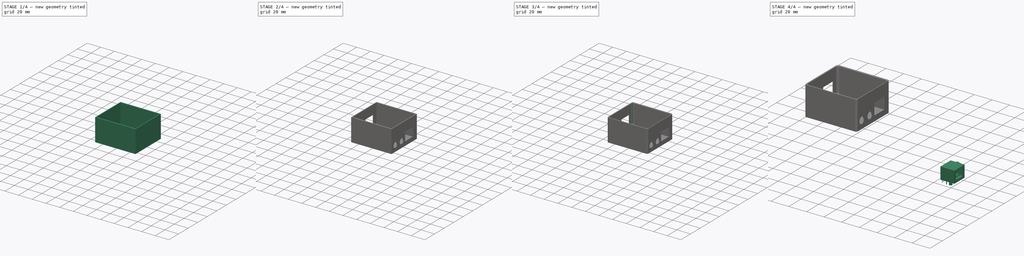
[diagram: build sequence overview — one tinted view per stage of 4, left to right]
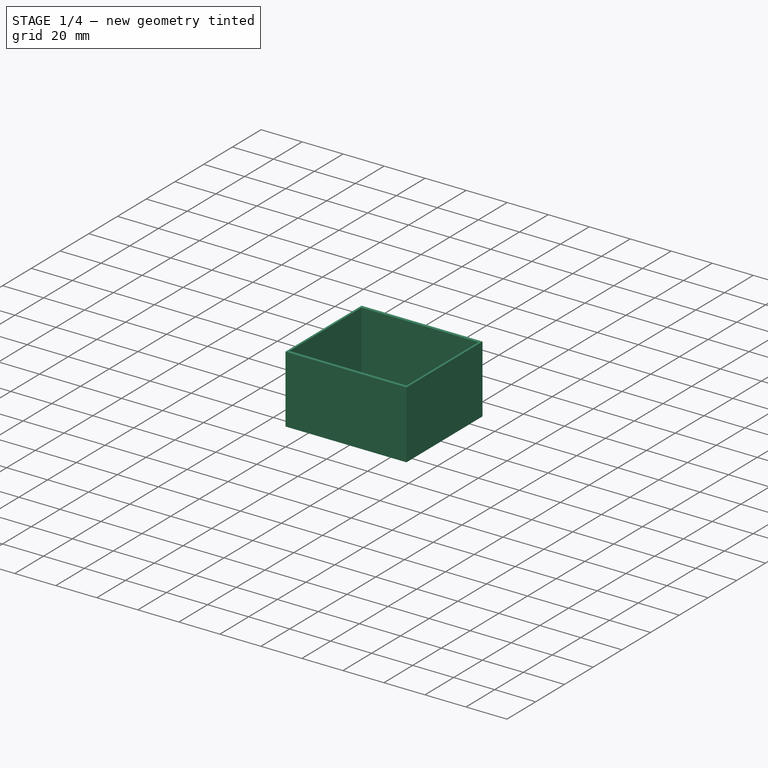
[diagram: stage 1 of 4 — iso view after this stage's code; geometry added in this stage tinted green]
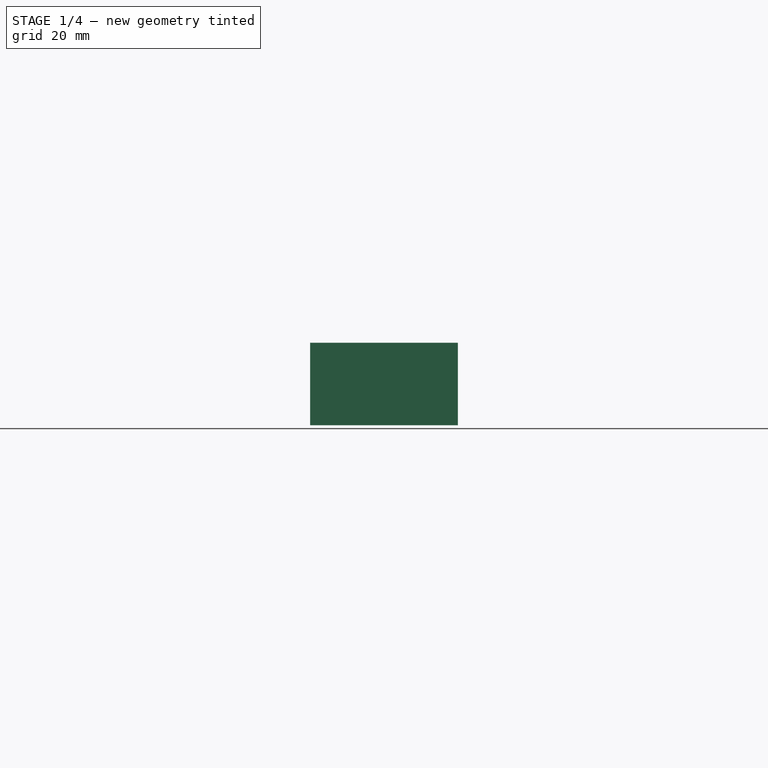
[diagram: stage 1 of 4 — front view after this stage's code; geometry added in this stage tinted green]
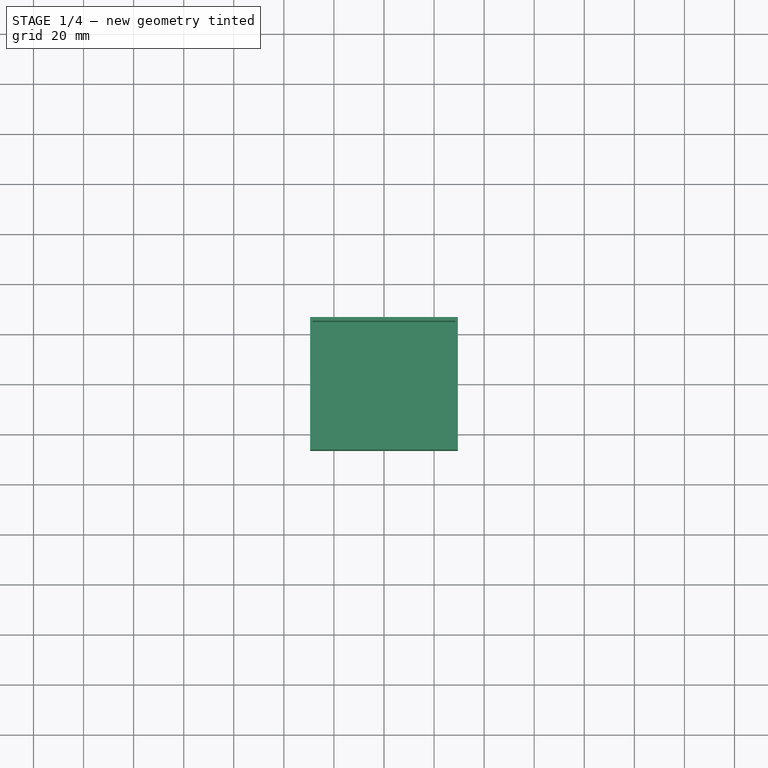
[diagram: stage 1 of 4 — top view after this stage's code; geometry added in this stage tinted green]
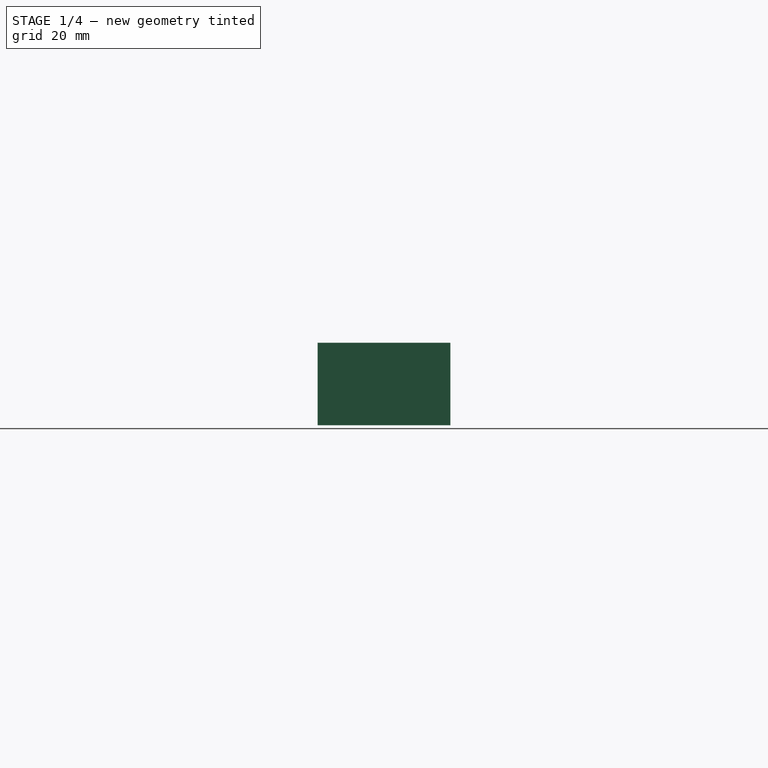
[diagram: stage 1 of 4 — right view after this stage's code; geometry added in this stage tinted green]
FCSTD DOCUMENT  (FreeCAD 0.19RUnknown)
Label: cASE
License: All rights reserved
LicenseURL: http://en.wikipedia.org/wiki/All_rights_reserved
objects: Part::Feature×11, Sketcher::SketchObject×5, PartDesign::Pocket×3, PartDesign::Fillet×3, Part::Compound2×2, PartDesign::Pad×2, App::Link×1, App::LinkGroup×1, PartDesign::Body×1
note: 33 computed .brp shape members not serialized (recipe doc carries the construction recipe); baked Part::Feature solids carry a one-line shape summary decoded from their .brp

FEATURE [Part::Feature] Solid010  label="Mikadapter PCB"
  shape: bbox 57.15 x 50.8 x 1.6 mm, 76 faces (baked)
FEATURE [App::Link] Link  label="FC68132"
  ElementCount = 3
  LinkedObject = -> Compound001
  PlacementList = 3 placements: [(166.45,-77.771,2.15),(166.37,-90.805,2.65),(119.38,-90.805,1.65)]
  ScaleList = (3) [(1,1,1),(1,1,1),(1,1,1)]
  ShowElement = false
FEATURE [App::LinkGroup] LinkGroup  label="Mikadapter 1"
  ElementList = -> [Compound,Link,Solid010]
  LinkMode = 0
  Placement = pos=(-142.75,72.5001,4) rot=(0,0,1;0rad)
FEATURE [Sketcher::SketchObject] Sketch
  FullyConstrained = true
  MapMode = 5
  Support = -> [XY_Plane]
  sketch-geometry (4):
    g0: LineSegment StartX=-29.5 StartY=26.5 StartZ=0 EndX=29.5 EndY=26.5 EndZ=0
    g1: LineSegment StartX=29.5 StartY=26.5 StartZ=0 EndX=29.5 EndY=-26.5 EndZ=0
    g2: LineSegment StartX=29.5 StartY=-26.5 StartZ=0 EndX=-29.5 EndY=-26.5 EndZ=0
    g3: LineSegment StartX=-29.5 StartY=-26.5 StartZ=0 EndX=-29.5 EndY=26.5 EndZ=0
  constraints (11):
    c: Coincident(g0,g1)
    c: Coincident(g1,g2)
    c: Coincident(g2,g3)
    c: Coincident(g3,g0)
    c: Horizontal(g0)
    c: Horizontal(g2)
    c: Vertical(g1)
    c: Vertical(g3)
    c: Symmetric(g0,g1,g-1)
    c: Distance(g0) = 59
    c: Distance(g1) = 53
FEATURE [PartDesign::Pad] Pad
  Direction = (1,1,1)
  Length = 33
  Length2 = 100
  Profile = -> Sketch
  Type = 0
FEATURE [Sketcher::SketchObject] Sketch001
  FullyConstrained = true
  MapMode = 5
  Placement = pos=(0,0,33) rot=(0,0,1;0rad)
  Support = -> [Pad]
  sketch-geometry (4):
    g0: LineSegment StartX=-28.5 StartY=25 StartZ=0 EndX=28.5 EndY=25 EndZ=0
    g1: LineSegment StartX=28.5 StartY=25 StartZ=0 EndX=28.5 EndY=-25 EndZ=0
    g2: LineSegment StartX=28.5 StartY=-25 StartZ=0 EndX=-28.5 EndY=-25 EndZ=0
    g3: LineSegment StartX=-28.5 StartY=-25 StartZ=0 EndX=-28.5 EndY=25 EndZ=0
  constraints (11):
    c: Horizontal(g0)
    c: Vertical(g1)
    c: Coincident(g1,g2)
    c: Horizontal(g2)
    c: Coincident(g2,g3)
    c: Coincident(g3,g0)
    c: Vertical(g3)
    c: Coincident(g1,g0)
    c: Distance(g2) = 57
    c: Distance(g1) = 50
    c: Symmetric(g0,g2,g-1)
FEATURE [PartDesign::Pocket] Pocket
  BaseFeature = -> Pad
  Length = 31
  Length2 = 100
  Profile = -> Sketch001
  Type = 0
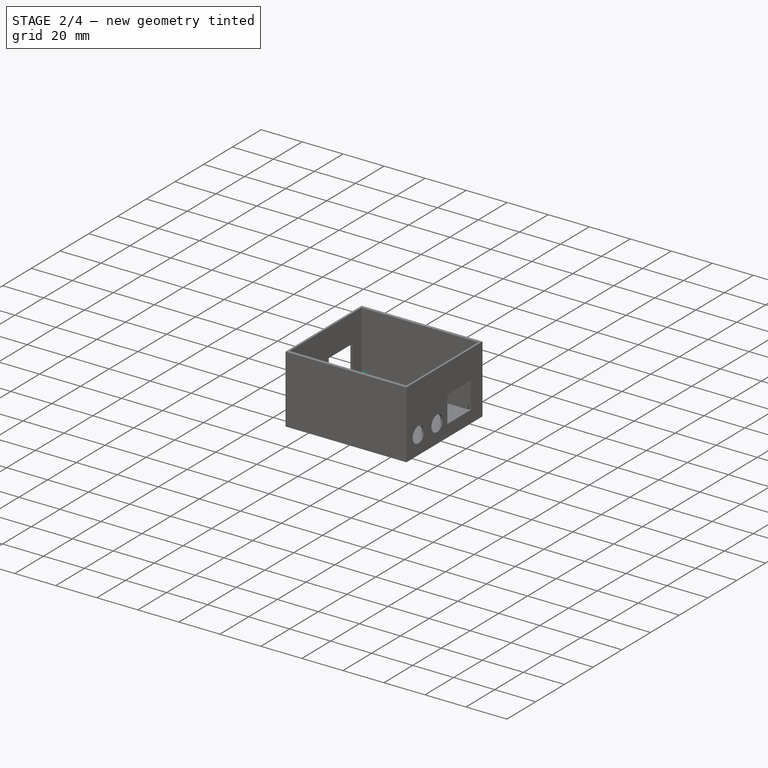
[diagram: stage 2 of 4 — iso view after this stage's code; geometry added in this stage tinted green]
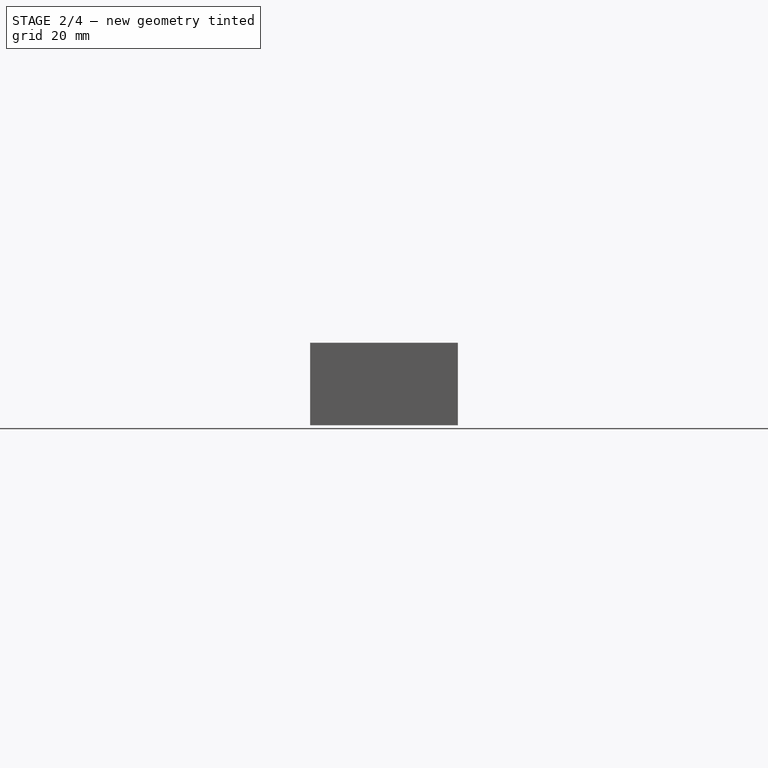
[diagram: stage 2 of 4 — front view after this stage's code; geometry added in this stage tinted green]
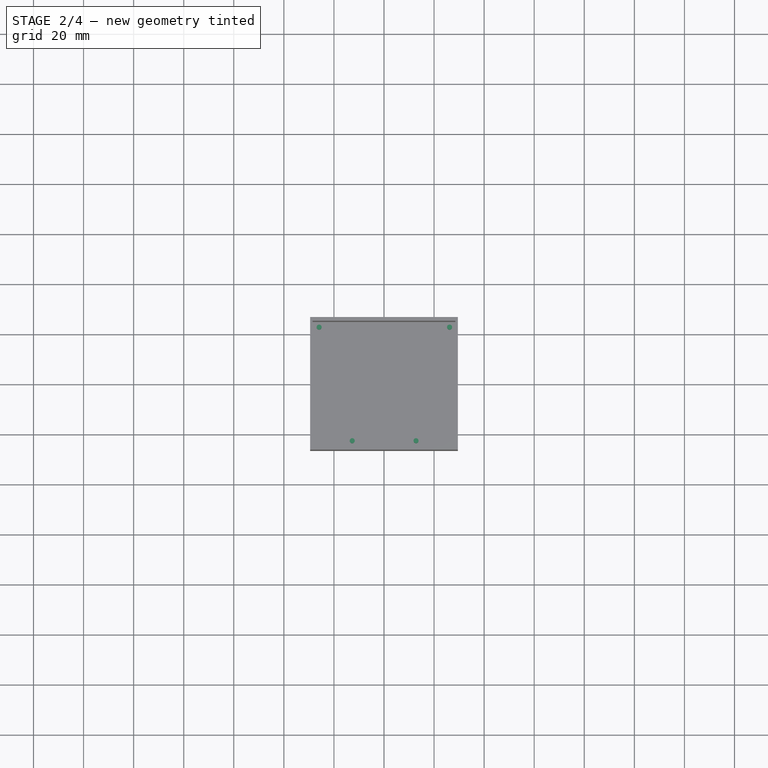
[diagram: stage 2 of 4 — top view after this stage's code; geometry added in this stage tinted green]
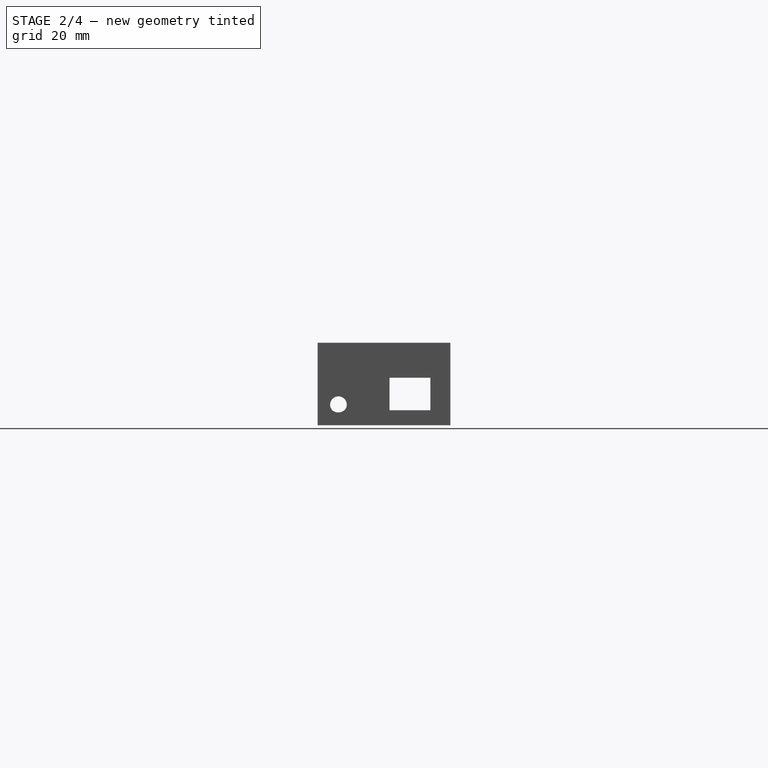
[diagram: stage 2 of 4 — right view after this stage's code; geometry added in this stage tinted green]
FEATURE [Sketcher::SketchObject] Sketch002
  ExternalGeometry = -> [Pocket]
  FullyConstrained = true
  MapMode = 5
  Placement = pos=(29.5,0,0) rot=(0.57735,0.57735,0.57735;2.0944rad)
  Support = -> [Pocket]
  sketch-geometry (6):
    g0: LineSegment StartX=2 StartY=19 StartZ=0 EndX=18.5 EndY=19 EndZ=0
    g1: LineSegment StartX=18.5 StartY=19 StartZ=0 EndX=18.5 EndY=6 EndZ=0
    g2: LineSegment StartX=18.5 StartY=6 StartZ=0 EndX=2 EndY=6 EndZ=0
    g3: LineSegment StartX=2 StartY=6 StartZ=0 EndX=2 EndY=19 EndZ=0
    g4: Circle CenterX=-18.25 CenterY=9 CenterZ=0 NormalX=0 NormalY=0 NormalZ=1 AngleXU=0 Radius=3.855
    g5: Circle CenterX=-5.25 CenterY=9 CenterZ=0 NormalX=0 NormalY=0 NormalZ=1 AngleXU=0 Radius=3.855
  constraints (18):
    c: Coincident(g0,g1)
    c: Coincident(g1,g2)
    c: Coincident(g2,g3)
    c: Coincident(g3,g0)
    c: Horizontal(g0)
    c: Horizontal(g2)
    c: Vertical(g1)
    c: Vertical(g3)
    c: DistanceY(g-1,g2) = 6
    c: Distance(g3) = 13
    c: Distance(g2) = 16.5
    c: DistanceY(g-3,g4) = 9
    c: DistanceY(g4,g5) = 0
    c: DistanceX(g-3,g4) = 8.25
    c: DistanceX(g4,g5) = 13
    c: Equal(g4,g5)
    c: DistanceX(g-4,g0) = 28.5
    c: Diameter(g5) = 7.71
FEATURE [PartDesign::Pocket] Pocket001
  BaseFeature = -> Pocket
  Length = 2
  Length2 = 100
  Profile = -> Sketch002
  Type = 0
FEATURE [Sketcher::SketchObject] Sketch003
  FullyConstrained = true
  MapMode = 5
  Placement = pos=(-31,0,0) rot=(0.57735,-0.57735,-0.57735;2.0944rad)
  sketch-geometry (5):
    g0: LineSegment StartX=-18.7 StartY=19.44 StartZ=0 EndX=-2.2 EndY=19.44 EndZ=0
    g1: LineSegment StartX=-2.2 StartY=19.44 StartZ=0 EndX=-2.2 EndY=5.5 EndZ=0
    g2: LineSegment StartX=-2.2 StartY=5.5 StartZ=0 EndX=-18.7 EndY=5.5 EndZ=0
    g3: LineSegment StartX=-18.7 StartY=5.5 StartZ=0 EndX=-18.7 EndY=19.44 EndZ=0
    g4: Circle CenterX=18.2 CenterY=8.25 CenterZ=0 NormalX=0 NormalY=0 NormalZ=1 AngleXU=0 Radius=3.315
  constraints (15):
    c: Coincident(g0,g1)
    c: Coincident(g1,g2)
    c: Coincident(g2,g3)
    c: Coincident(g3,g0)
    c: Horizontal(g0)
    c: Horizontal(g2)
    c: Vertical(g1)
    c: Vertical(g3)
    c: DistanceY(g-1,g2) = 5.5
    c: DistanceX(g2,g2) = 16.5
    c: Diameter(g4) = 6.63
    c: DistanceY(g-1,g4) = 8.25
    c: DistanceX(g-1,g4) = 18.2
    c: DistanceX(g1,g-1) = 2.2
    c: Distance(g3) = 13.94
FEATURE [PartDesign::Pocket] Pocket002
  BaseFeature = -> Pocket001
  Length = 3
  Length2 = 100
  Profile = -> Sketch003
  Type = 0
FEATURE [Sketcher::SketchObject] Sketch004
  FullyConstrained = false
  MapMode = 5
  Placement = pos=(0,0,2) rot=(0,0,1;0rad)
  sketch-geometry (4):
    g0: Circle CenterX=-25.9091 CenterY=22.9263 CenterZ=0 NormalX=0 NormalY=0 NormalZ=1 AngleXU=0 Radius=1
    g1: Circle CenterX=26.1909 CenterY=22.9263 CenterZ=0 NormalX=0 NormalY=0 NormalZ=1 AngleXU=0 Radius=1
    g2: Circle CenterX=12.801 CenterY=-22.4616 CenterZ=0 NormalX=0 NormalY=0 NormalZ=1 AngleXU=0 Radius=1
    g3: Circle CenterX=-12.689 CenterY=-22.4616 CenterZ=0 NormalX=0 NormalY=0 NormalZ=1 AngleXU=0 Radius=1
  constraints (8):
    c: Diameter(g0) = 2
    c: Equal(g0,g1)
    c: Equal(g1,g3)
    c: Equal(g3,g2)
    c: DistanceY(g2,g3) = 0
    c: DistanceY(g1,g0) = 0
    c: DistanceX(g0,g1) = 52.1
    c: DistanceX(g3,g2) = 25.49
FEATURE [PartDesign::Pad] Pad001
  BaseFeature = -> Pocket002
  Direction = (1,1,1)
  Length = 4
  Length2 = 100
  Profile = -> Sketch004
  Type = 0
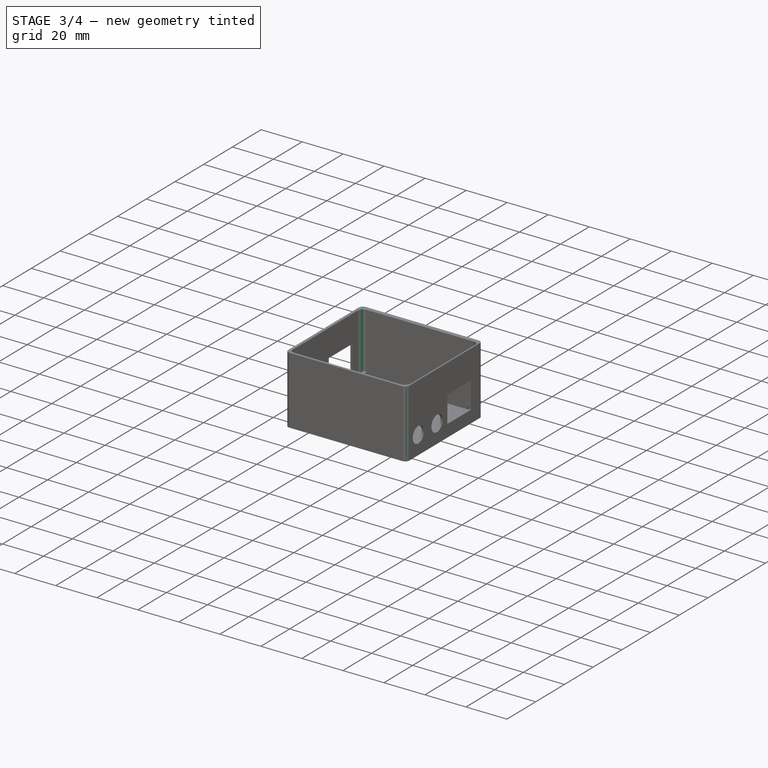
[diagram: stage 3 of 4 — iso view after this stage's code; geometry added in this stage tinted green]
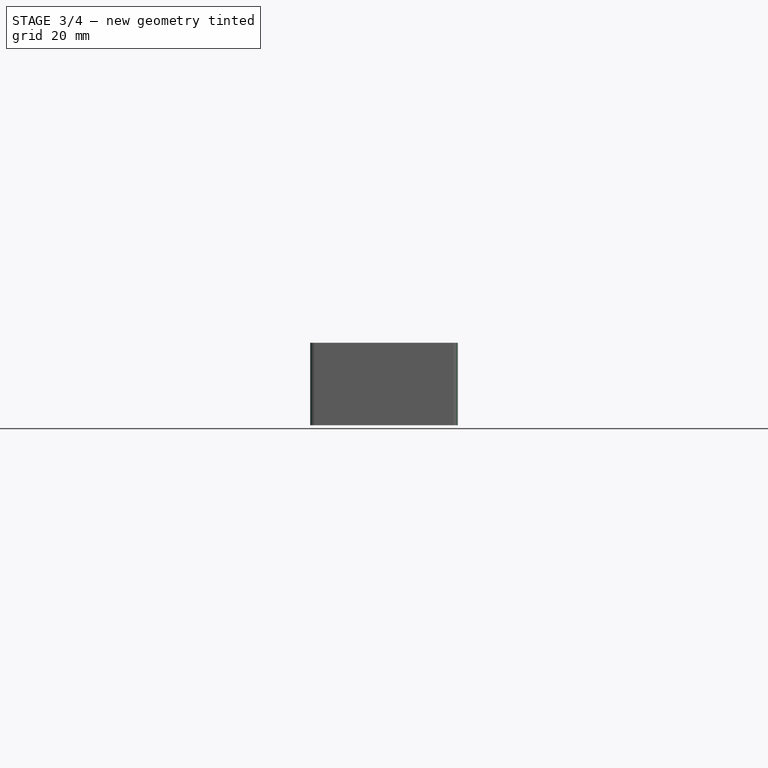
[diagram: stage 3 of 4 — front view after this stage's code; geometry added in this stage tinted green]
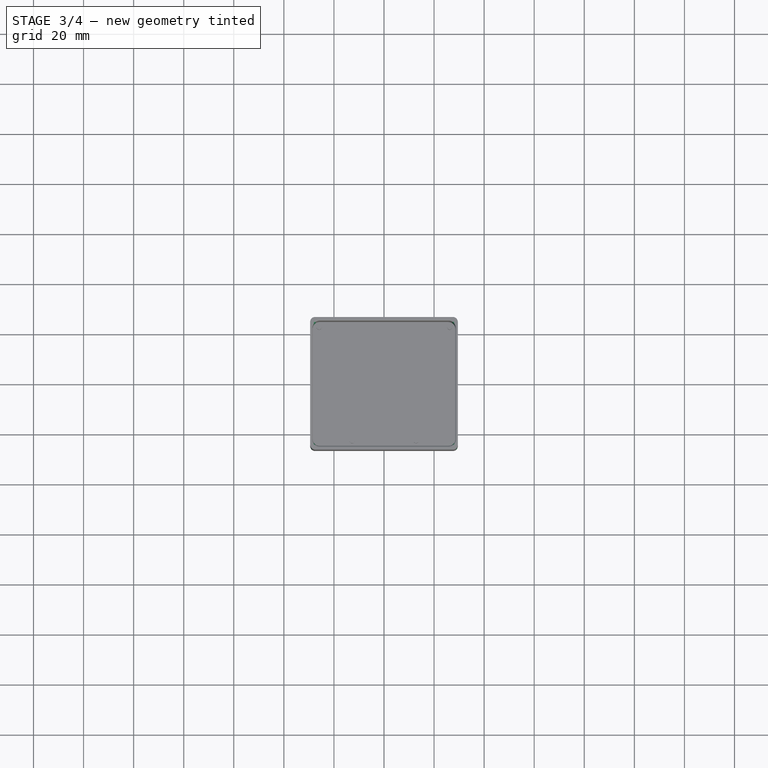
[diagram: stage 3 of 4 — top view after this stage's code; geometry added in this stage tinted green]
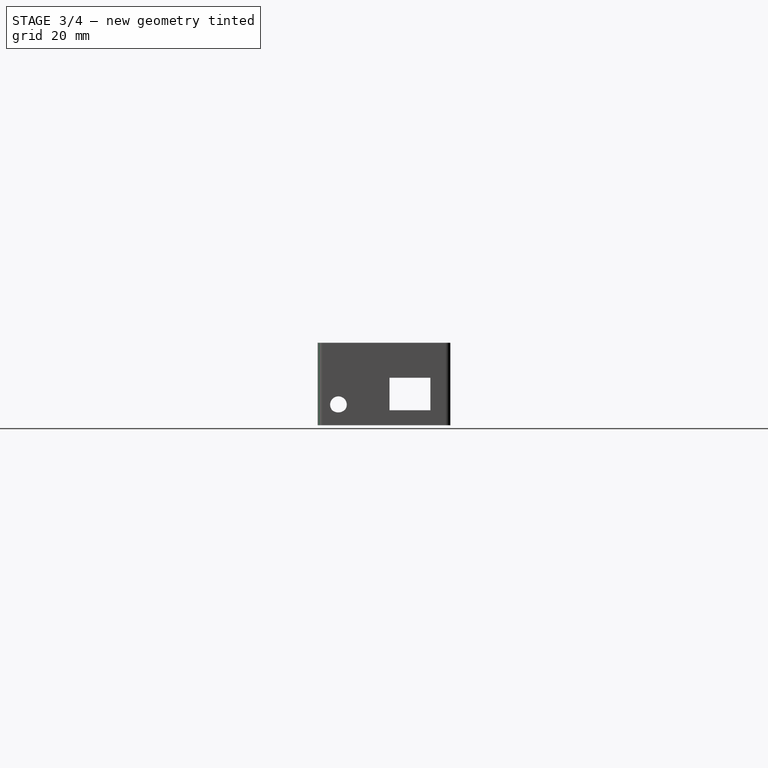
[diagram: stage 3 of 4 — right view after this stage's code; geometry added in this stage tinted green]
FEATURE [PartDesign::Fillet] Fillet
  Base = -> Pad001 [Edge2,Edge15,Edge5,Edge1]
  BaseFeature = -> Pad001
  Radius = 2
  SupportTransform = false
FEATURE [PartDesign::Fillet] Fillet001
  Base = -> Fillet [Edge41,Edge40,Edge44,Edge51]
  BaseFeature = -> Fillet
  Radius = 2.75
  SupportTransform = false
FEATURE [PartDesign::Fillet] Fillet002
  Base = -> Fillet001 [Edge1]
  BaseFeature = -> Fillet001
  Radius = 0.5
  SupportTransform = false
FEATURE [PartDesign::Body] Body
  Group = -> [Sketch,Pad,Sketch001,Pocket,Sketch002,Pocket001,Sketch003,Pocket002,Sketch004,Pad001,Fillet,Fillet001,Fillet002]
  Origin = -> Origin
  Tip = -> Fillet002
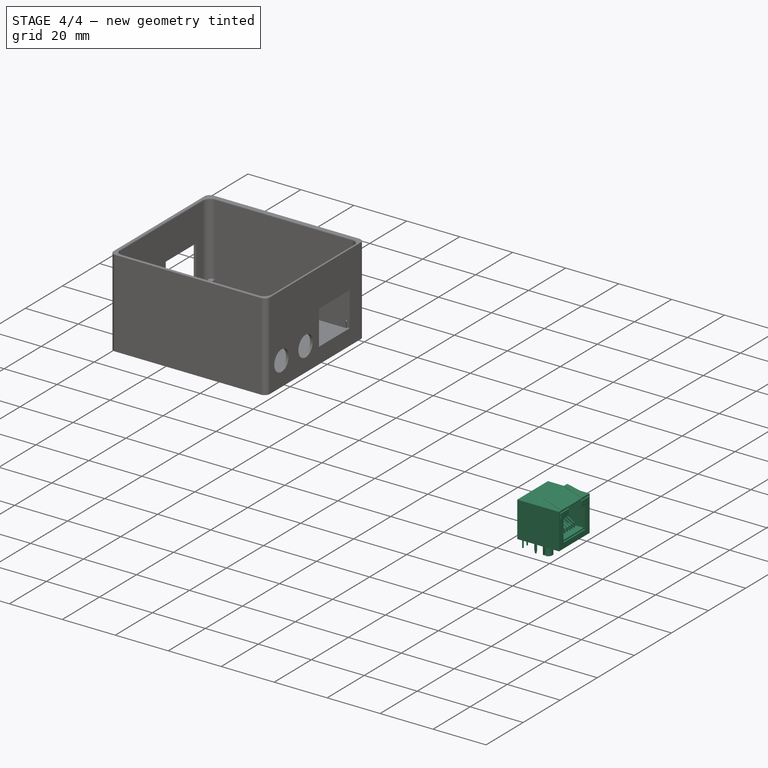
[diagram: stage 4 of 4 — iso view after this stage's code; geometry added in this stage tinted green]
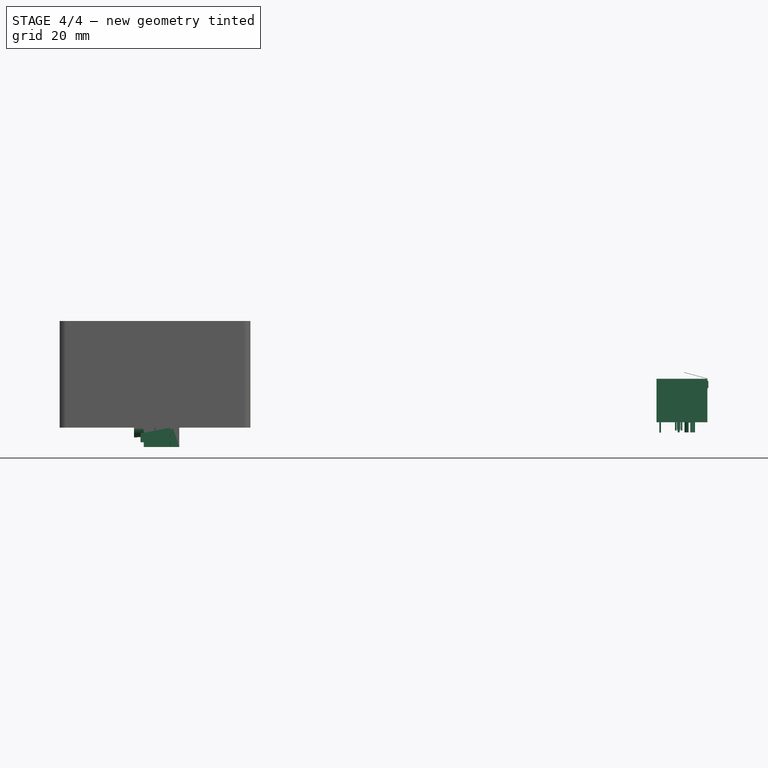
[diagram: stage 4 of 4 — front view after this stage's code; geometry added in this stage tinted green]
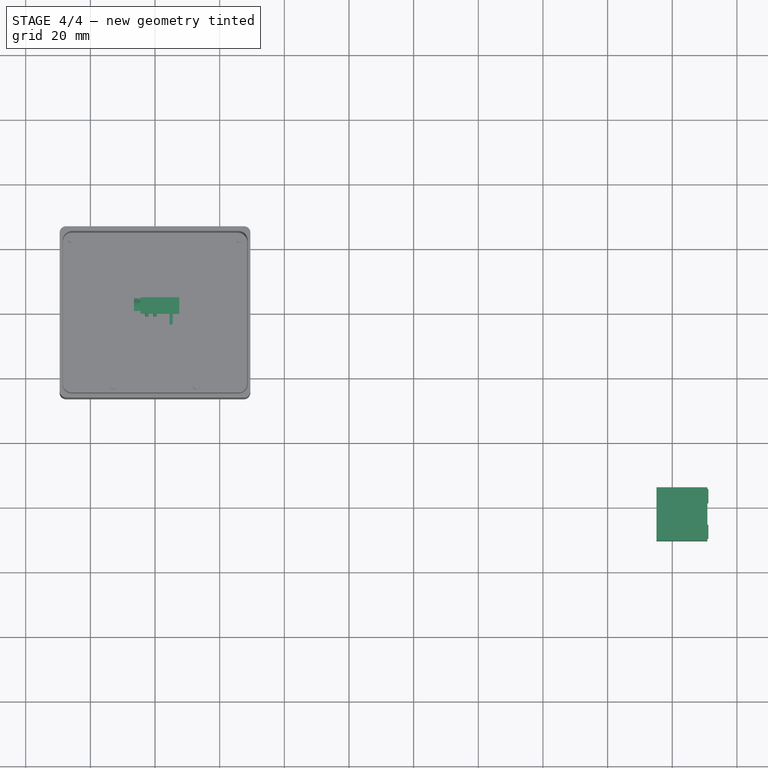
[diagram: stage 4 of 4 — top view after this stage's code; geometry added in this stage tinted green]
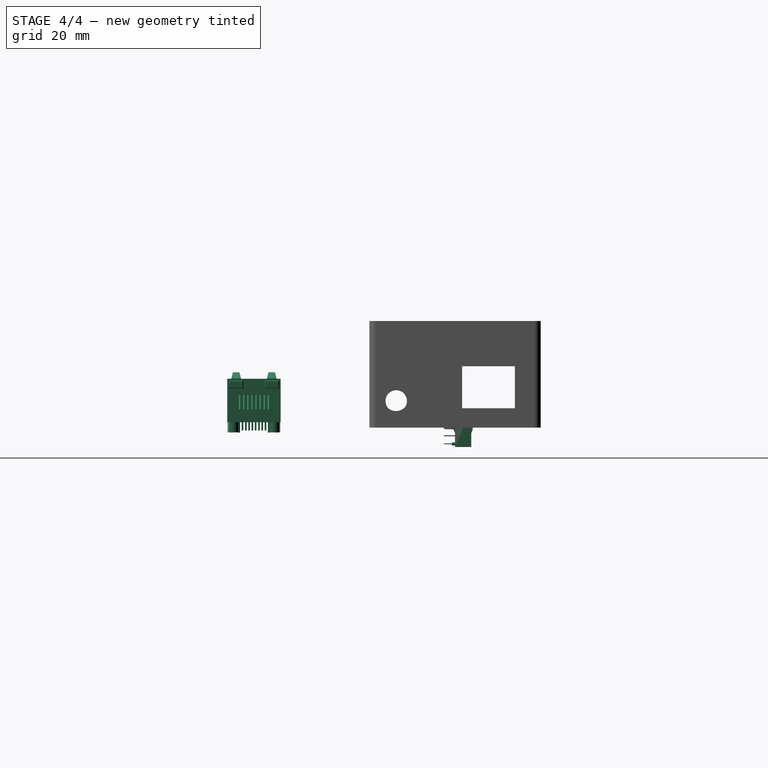
[diagram: stage 4 of 4 — right view after this stage's code; geometry added in this stage tinted green]
FEATURE [Part::Feature] Solid
  shape: bbox 17.86 x 16.05 x 16.64 mm, 151 faces (baked)
FEATURE [Part::Feature] Solid001
  shape: bbox 3 x 7.27 x 2.038 mm, 6 faces (baked)
FEATURE [Part::Feature] Solid002
  shape: bbox 3 x 7.27 x 2.038 mm, 6 faces (baked)
FEATURE [Part::Compound2] Compound  label="RJ45_Amphenol_RJHSE538X"
  Links = -> [Solid,Solid001,Solid002]
  Placement = pos=(162.865,-58.658,1.65) rot=(0,0,-1;1.5708rad)
FEATURE [Part::Feature] Solid003
  shape: bbox 0.3 x 3.5 x 1 mm, 6 faces (baked)
FEATURE [Part::Feature] Solid004
  shape: bbox 1 x 3.5 x 0.3 mm, 6 faces (baked)
FEATURE [Part::Feature] Solid005
  shape: bbox 1 x 6 x 6 mm, 8 faces (baked)
FEATURE [Part::Feature] Solid006
  shape: bbox 13 x 6.45 x 12 mm, 34 faces (baked)
FEATURE [Part::Feature] Solid007
  shape: bbox 1 x 3.5 x 0.3 mm, 6 faces (baked)
FEATURE [Part::Feature] Solid008
  shape: bbox 1 x 3.5 x 0.3 mm, 6 faces (baked)
FEATURE [Part::Feature] Solid009
  shape: bbox 1 x 3.5 x 0.3 mm, 6 faces (baked)
FEATURE [Part::Compound2] Compound001  label="FC68131"
  Links = -> [Solid003,Solid004,Solid005,Solid006,Solid007,Solid008,Solid009]
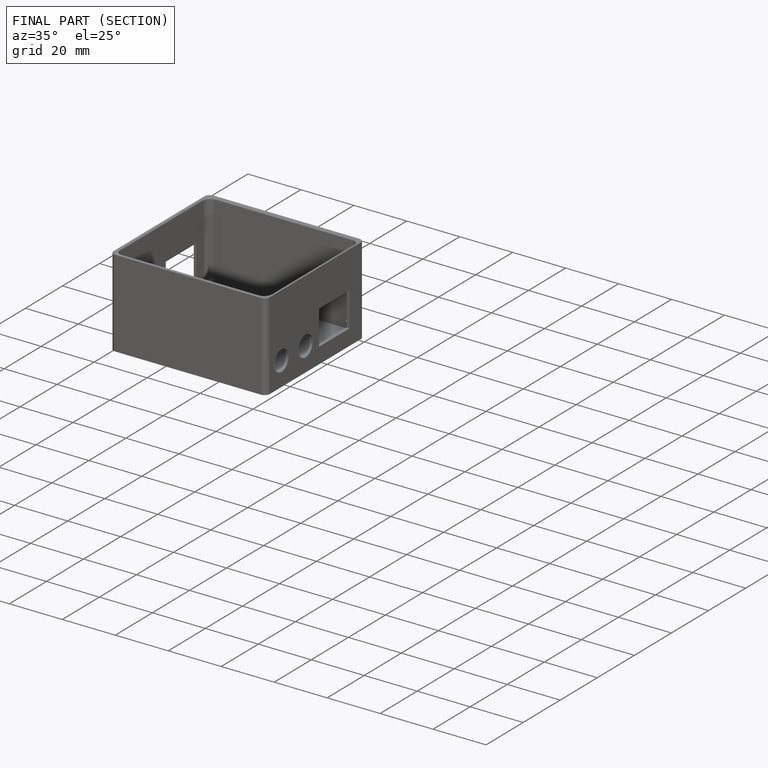
[diagram: finished part — half-section view (interior)]
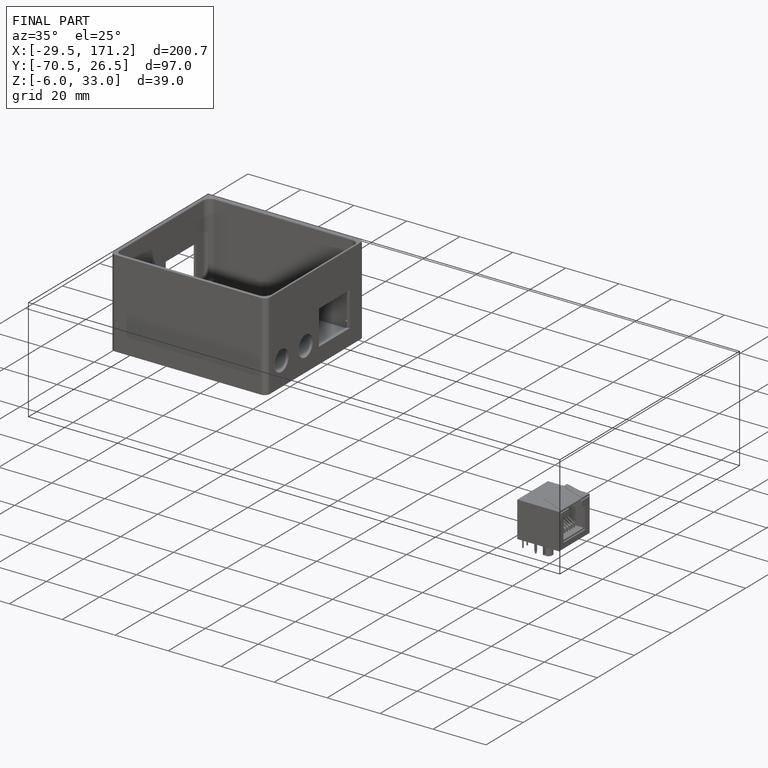
[diagram: finished part — iso view with bounding-box wireframe]
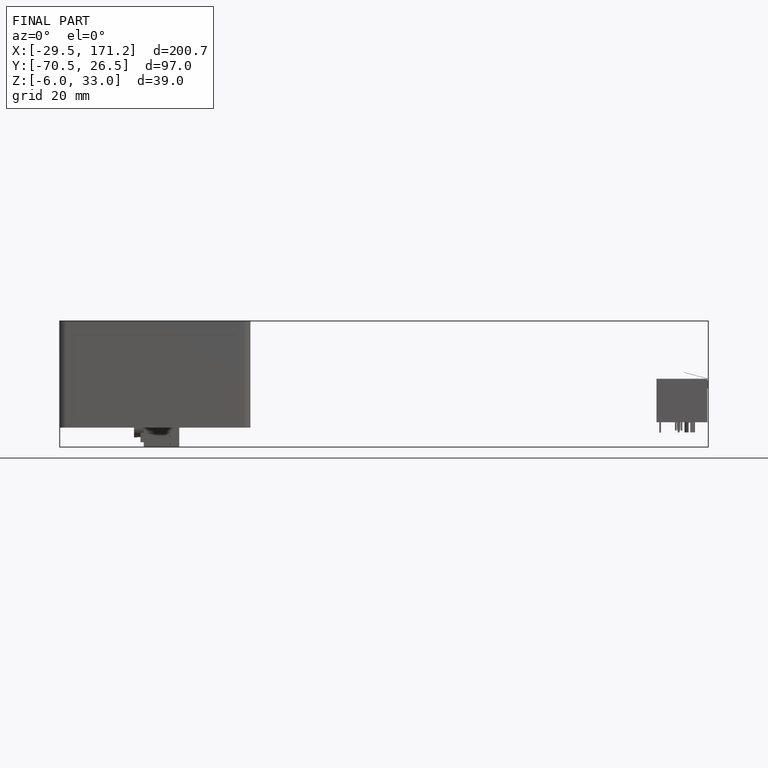
[diagram: finished part — front view with bounding-box wireframe]
